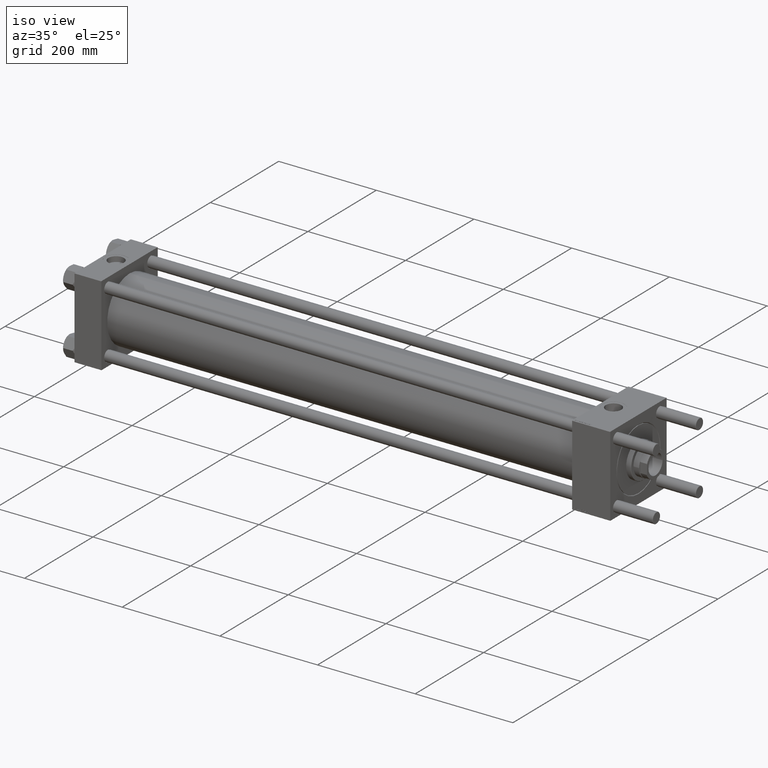
[diagram: clean part render]
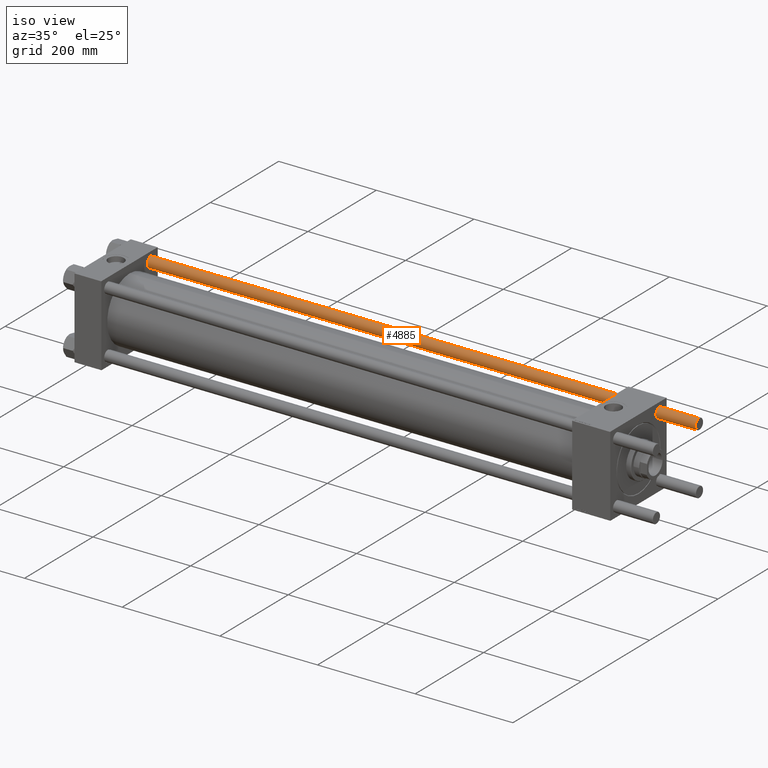
[diagram: same view with one face highlighted and labeled with its STEP entity id]
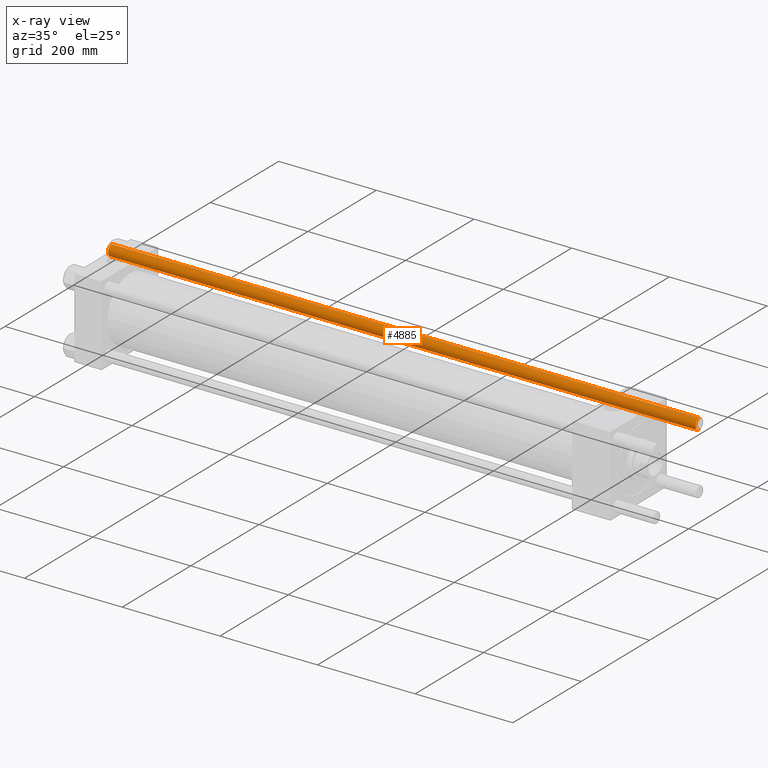
[diagram: x-ray of the same camera — body ghosted, the highlighted face saturated]
A machine part, iso view. The second image highlights one B-rep face of the part: STEP entity #4885.
The next image is the same camera in x-ray: the body ghosted, the highlighted face saturated — about 0% of this face is hidden behind the body in this view.
In plain terms, the highlighted cylindrical surface (edge-blend (fillet) strip) has radius 11 mm, axis along (1, -0, -0).
Its self-contained STEP definition (entity closure, byte-faithful):
#2107 = DIRECTION ( 'NONE',  ( -0.000000000000000000, -0.000000000000000000, -1.000000000000000000 ) ) ;
#2111 = VERTEX_POINT ( 'NONE', #36277 ) ;
#2898 = EDGE_CURVE ( 'NONE', #6579, #2111, #17863, .T. ) ;
#3166 = AXIS2_PLACEMENT_3D ( 'NONE', #38787, #30669, #26319 ) ;
#4885 = ADVANCED_FACE ( 'NONE', ( #8648 ), #47747, .T. ) ;
#5947 = LINE ( 'NONE', #42118, #38574 ) ;
#6579 = VERTEX_POINT ( 'NONE', #26058 ) ;
#7023 = VERTEX_POINT ( 'NONE', #49459 ) ;
#8648 = FACE_OUTER_BOUND ( 'NONE', #45662, .T. ) ;
#16634 = VERTEX_POINT ( 'NONE', #45333 ) ;
#17863 = CIRCLE ( 'NONE', #53002, 11.00000000000000000 ) ;
#18163 = ORIENTED_EDGE ( 'NONE', *, *, #21328, .F. ) ;
#19366 = EDGE_CURVE ( 'NONE', #2111, #7023, #5947, .T. ) ;
#20178 = ORIENTED_EDGE ( 'NONE', *, *, #19366, .T. ) ;
#21328 = EDGE_CURVE ( 'NONE', #6579, #16634, #46107, .T. ) ;
#22035 = CARTESIAN_POINT ( 'NONE',  ( 0.000000000000000000, 0.000000000000000000, 1203.499999999999545 ) ) ;
#22895 = VECTOR ( 'NONE', #2107, 1000.000000000000000 ) ;
#24105 = CARTESIAN_POINT ( 'NONE',  ( 11.00000000000000000, 1.347111479062088405E-15, 1204.000000000000000 ) ) ;
#25084 = AXIS2_PLACEMENT_3D ( 'NONE', #50515, #31718, #45303 ) ;
#26058 = CARTESIAN_POINT ( 'NONE',  ( 11.00000000000000000, 1.347111479062088405E-15, 1203.499999999999545 ) ) ;
#26319 = DIRECTION ( 'NONE',  ( -1.000000000000000000, 0.000000000000000000, 0.000000000000000000 ) ) ;
#30669 = DIRECTION ( 'NONE',  ( -0.000000000000000000, -0.000000000000000000, -1.000000000000000000 ) ) ;
#31718 = DIRECTION ( 'NONE',  ( -0.000000000000000000, -0.000000000000000000, 1.000000000000000000 ) ) ;
#33739 = DIRECTION ( 'NONE',  ( -0.000000000000000000, -0.000000000000000000, -1.000000000000000000 ) ) ;
#35069 = DIRECTION ( 'NONE',  ( 1.000000000000000000, 0.000000000000000000, 0.000000000000000000 ) ) ;
#36277 = CARTESIAN_POINT ( 'NONE',  ( -11.00000000000000000, 0.000000000000000000, 1203.499999999999545 ) ) ;
#36973 = EDGE_CURVE ( 'NONE', #7023, #16634, #52806, .T. ) ;
#38574 = VECTOR ( 'NONE', #33739, 1000.000000000000000 ) ;
#38787 = CARTESIAN_POINT ( 'NONE',  ( 0.000000000000000000, 0.000000000000000000, 1204.000000000000000 ) ) ;
#42118 = CARTESIAN_POINT ( 'NONE',  ( -11.00000000000000000, 0.000000000000000000, 1204.000000000000000 ) ) ;
#43171 = ORIENTED_EDGE ( 'NONE', *, *, #2898, .T. ) ;
#44037 = DIRECTION ( 'NONE',  ( 0.000000000000000000, 0.000000000000000000, -1.000000000000000000 ) ) ;
#45303 = DIRECTION ( 'NONE',  ( 1.000000000000000000, 0.000000000000000000, 0.000000000000000000 ) ) ;
#45333 = CARTESIAN_POINT ( 'NONE',  ( 11.00000000000000000, 1.347111479062088405E-15, 0.5000000000001669775 ) ) ;
#45662 = EDGE_LOOP ( 'NONE', ( #18163, #43171, #20178, #52606 ) ) ;
#46107 = LINE ( 'NONE', #24105, #22895 ) ;
#47747 = CYLINDRICAL_SURFACE ( 'NONE', #3166, 11.00000000000000000 ) ;
#49459 = CARTESIAN_POINT ( 'NONE',  ( -11.00000000000000000, 0.000000000000000000, 0.5000000000001669775 ) ) ;
#50515 = CARTESIAN_POINT ( 'NONE',  ( 0.000000000000000000, 0.000000000000000000, 0.5000000000001669775 ) ) ;
#52606 = ORIENTED_EDGE ( 'NONE', *, *, #36973, .T. ) ;
#52806 = CIRCLE ( 'NONE', #25084, 11.00000000000000000 ) ;
#53002 = AXIS2_PLACEMENT_3D ( 'NONE', #22035, #44037, #35069 ) ;